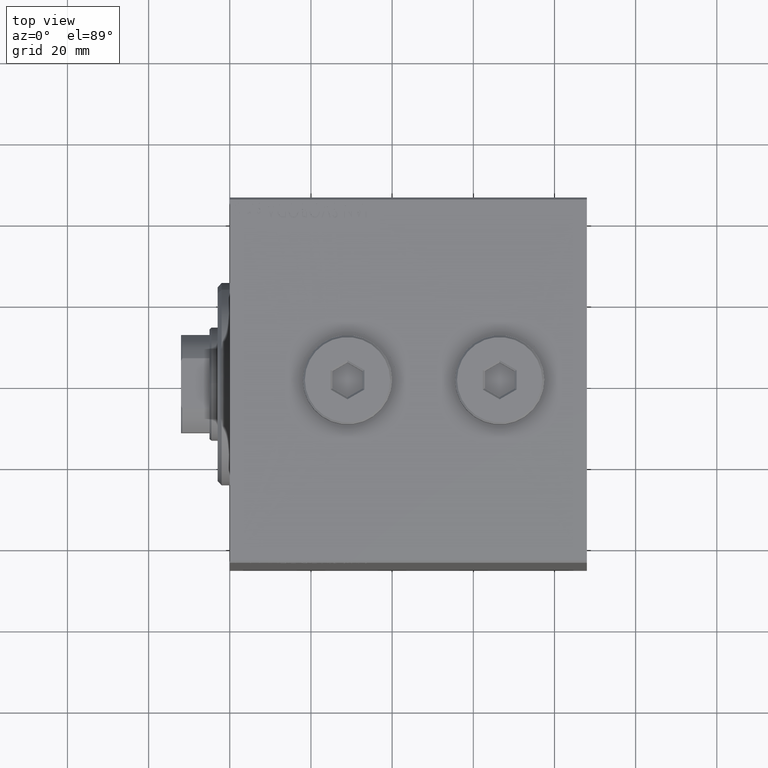
[diagram: clean part render]
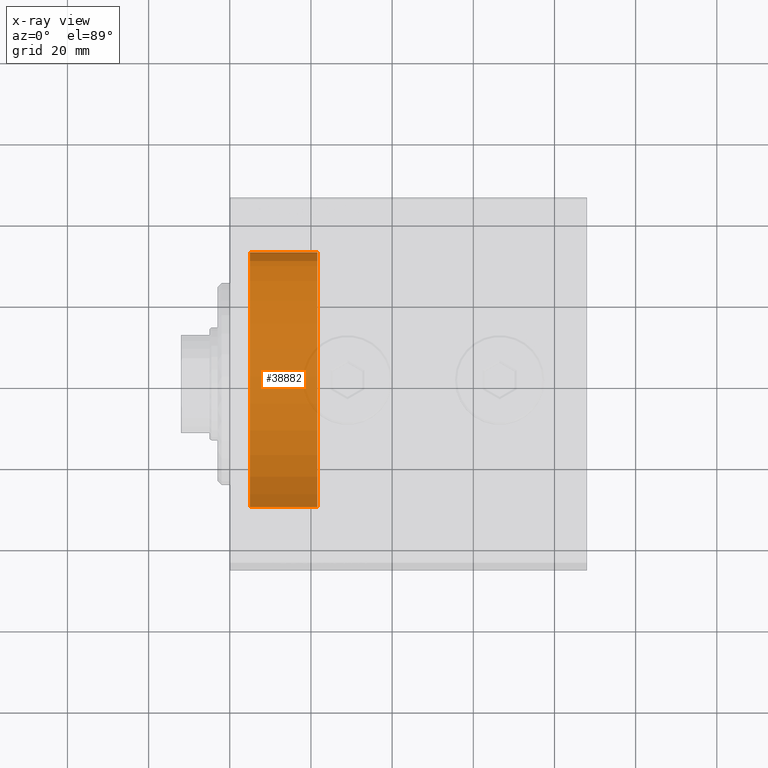
[diagram: x-ray — body ghosted, one internal face saturated and labeled with its STEP entity id]
A machine part, top view, then the same camera in x-ray: the body is ghosted and one INTERNAL B-rep face — a face not visible from any outside direction — is saturated and labeled: STEP entity #38882.
In plain terms, the highlighted cylindrical surface (partial cylindrical patch) has radius 32.5 mm, axis along (-1, 0, 0).
Its self-contained STEP definition (entity closure, byte-faithful):
#1405 = ORIENTED_EDGE ( 'NONE', *, *, #28088, .T. ) ;
#2172 = AXIS2_PLACEMENT_3D ( 'NONE', #26570, #30000, #40490 ) ;
#2724 = CARTESIAN_POINT ( 'NONE',  ( -21.60000000000000142, 0.000000000000000000, 0.000000000000000000 ) ) ;
#2888 = EDGE_CURVE ( 'NONE', #32641, #35946, #26909, .T. ) ;
#2897 = EDGE_CURVE ( 'NONE', #29746, #32641, #8768, .T. ) ;
#4344 = CIRCLE ( 'NONE', #2172, 32.50000000000000000 ) ;
#6859 = VECTOR ( 'NONE', #36500, 1000.000000000000000 ) ;
#8768 = CIRCLE ( 'NONE', #23355, 32.50000000000000000 ) ;
#8911 = ORIENTED_EDGE ( 'NONE', *, *, #44398, .T. ) ;
#9298 = FACE_OUTER_BOUND ( 'NONE', #40641, .T. ) ;
#12315 = LINE ( 'NONE', #36731, #6859 ) ;
#13664 = DIRECTION ( 'NONE',  ( -1.000000000000000000, 0.000000000000000000, 0.000000000000000000 ) ) ;
#15695 = CYLINDRICAL_SURFACE ( 'NONE', #30905, 32.50000000000000000 ) ;
#16325 = VERTEX_POINT ( 'NONE', #27575 ) ;
#16433 = ORIENTED_EDGE ( 'NONE', *, *, #2888, .F. ) ;
#22051 = CARTESIAN_POINT ( 'NONE',  ( -5.000000000000000000, 0.000000000000000000, -32.50000000000000000 ) ) ;
#22766 = DIRECTION ( 'NONE',  ( 0.000000000000000000, 0.000000000000000000, -1.000000000000000000 ) ) ;
#23355 = AXIS2_PLACEMENT_3D ( 'NONE', #2724, #13664, #24376 ) ;
#24376 = DIRECTION ( 'NONE',  ( 0.000000000000000000, 0.000000000000000000, 1.000000000000000000 ) ) ;
#25449 = CARTESIAN_POINT ( 'NONE',  ( -21.60000000000000142, 3.980102097228897837E-15, 32.50000000000000000 ) ) ;
#26570 = CARTESIAN_POINT ( 'NONE',  ( -5.000000000000000000, 0.000000000000000000, 0.000000000000000000 ) ) ;
#26631 = DIRECTION ( 'NONE',  ( 1.000000000000000000, -0.000000000000000000, -0.000000000000000000 ) ) ;
#26909 = LINE ( 'NONE', #44926, #37209 ) ;
#27440 = CARTESIAN_POINT ( 'NONE',  ( -21.60000000000000142, 0.000000000000000000, -32.50000000000000000 ) ) ;
#27575 = CARTESIAN_POINT ( 'NONE',  ( -5.000000000000000000, 3.980102097228897837E-15, 32.50000000000000000 ) ) ;
#28088 = EDGE_CURVE ( 'NONE', #16325, #35946, #4344, .T. ) ;
#29506 = ORIENTED_EDGE ( 'NONE', *, *, #2897, .F. ) ;
#29614 = CARTESIAN_POINT ( 'NONE',  ( -21.60000000000000142, 0.000000000000000000, 0.000000000000000000 ) ) ;
#29746 = VERTEX_POINT ( 'NONE', #25449 ) ;
#30000 = DIRECTION ( 'NONE',  ( -1.000000000000000000, 0.000000000000000000, 0.000000000000000000 ) ) ;
#30905 = AXIS2_PLACEMENT_3D ( 'NONE', #29614, #26631, #22766 ) ;
#32641 = VERTEX_POINT ( 'NONE', #27440 ) ;
#35946 = VERTEX_POINT ( 'NONE', #22051 ) ;
#36500 = DIRECTION ( 'NONE',  ( 1.000000000000000000, -0.000000000000000000, -0.000000000000000000 ) ) ;
#36731 = CARTESIAN_POINT ( 'NONE',  ( -21.60000000000000142, 3.980102097228897837E-15, 32.50000000000000000 ) ) ;
#37209 = VECTOR ( 'NONE', #38080, 1000.000000000000000 ) ;
#38080 = DIRECTION ( 'NONE',  ( 1.000000000000000000, -0.000000000000000000, -0.000000000000000000 ) ) ;
#38882 = ADVANCED_FACE ( 'NONE', ( #9298 ), #15695, .T. ) ;
#40490 = DIRECTION ( 'NONE',  ( 0.000000000000000000, 0.000000000000000000, 1.000000000000000000 ) ) ;
#40641 = EDGE_LOOP ( 'NONE', ( #29506, #8911, #1405, #16433 ) ) ;
#44398 = EDGE_CURVE ( 'NONE', #29746, #16325, #12315, .T. ) ;
#44926 = CARTESIAN_POINT ( 'NONE',  ( -21.60000000000000142, 0.000000000000000000, -32.50000000000000000 ) ) ;